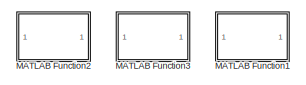
[diagram: root canvas - part 1/2, top right region]
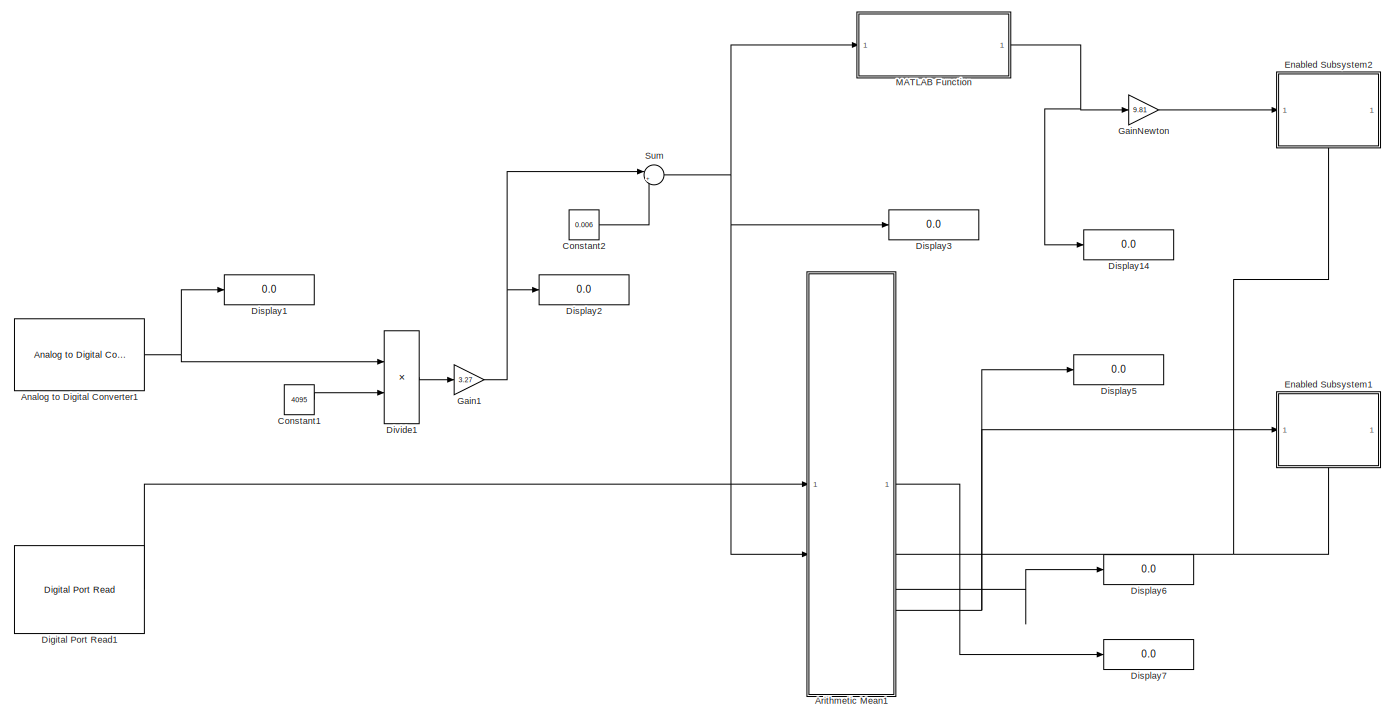
[diagram: root canvas - part 2/2, full width, bottom band]
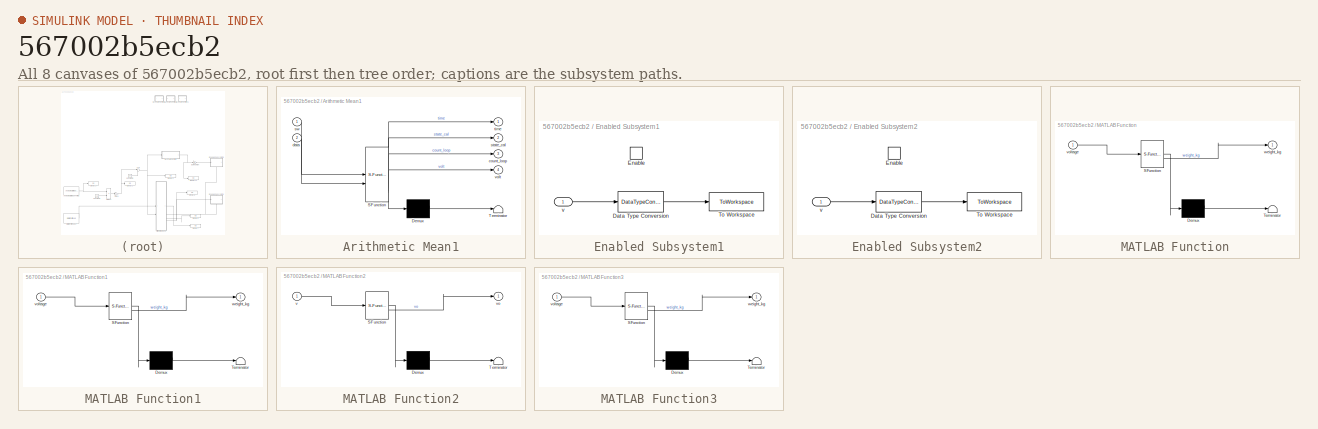
[diagram: thumbnail index - all 8 canvases of the model, root first then tree order]
MODEL slx_567002b5ecb2
KIND model
CONFIG AbsTol = auto
CONFIG EnableMultiTasking = on
CONFIG FixedStep = auto
CONFIG MaxStep = auto
CONFIG MinStep = auto
CONFIG RelTol = 1e-3
CONFIG SampleTimeConstraint = Unconstrained
CONFIG SolverName = FixedStepAuto
CONFIG StartTime = 0.0
CONFIG StopTime = inf
BLOCK [Reference] Analog to Digital Converter1  REF=stm32f4xxblockslib/Analog to Digital Converter
  LibrarySourceBlock = stm32g4xxblockslib/Analog to Digital Converter
  SourceBlock = stm32f4xxblockslib/Analog to Digital Converter
  SourceType = stm32cube.blocks.AnalogInput
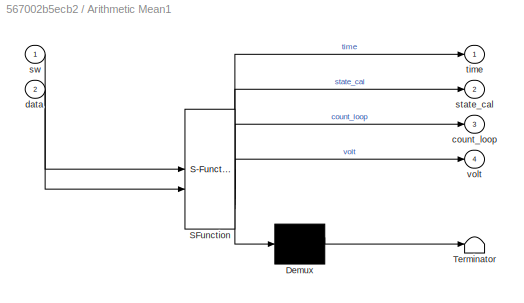
BLOCK [SubSystem] Arithmetic Mean1
  ErrorFcn = Stateflow.Translate.translate
  PermitHierarchicalResolution = ExplicitOnly
  PortSchema = {"entries":[{"content":{"sides":[{"content":{"connectorIds":["In2","In1"]},"type":"ConnectorPlacement.EquallySpacedRectSide","uuid":"35d75dd1-7445-4d4a-b8fe-26ed95a9a6b8"},{"content":{"connectorIds":["Out2","Out4","Out3","Out1"],"side":"RIGHT"},"type":"ConnectorPlacement.EquallySpacedRectSide","uuid":"b4f8c003-30bf-4716-9840-06738554497d"},{"content":{"side":"TOP"},"type":"ConnectorPlacement.Equal...<+249ch>
  SFBlockType = Chart
  TreatAsAtomicUnit = on
BLOCK [Demux] Arithmetic Mean1/ Demux 
  Outputs = 1
BLOCK [S-Function] Arithmetic Mean1/ SFunction 
  EnableBusSupport = on
  FunctionName = sf_sfun
  PortCounts = [2 5]
  SFcnIsStateOwnerBlock = off
  SFunctionDeploymentMode = off
  Tag = Stateflow S-Function 1
BLOCK [Terminator] Arithmetic Mean1/ Terminator 
BLOCK [Outport] Arithmetic Mean1/count_loop
  Port = 3
BLOCK [Inport] Arithmetic Mean1/data
  Port = 2
BLOCK [Outport] Arithmetic Mean1/state_cal
  Port = 2
BLOCK [Inport] Arithmetic Mean1/sw
BLOCK [Outport] Arithmetic Mean1/time
BLOCK [Outport] Arithmetic Mean1/volt
  Port = 4
BLOCK [Constant] Constant1
  Value = 4095
BLOCK [Constant] Constant2
  Value = 0.006
BLOCK [Reference] Digital Port Read1  REF=stm32f4xxblockslib/Digital Port Read
  LibrarySourceBlock = stm32g4xxblockslib/Digital Port Read
  SourceBlock = stm32f4xxblockslib/Digital Port Read
  SourceType = stm32cube.blocks.DigitalPortRead
BLOCK [Display] Display1
  Decimation = 1
BLOCK [Display] Display14
  Decimation = 1
BLOCK [Display] Display2
  Decimation = 1
BLOCK [Display] Display3
  Decimation = 1
BLOCK [Display] Display5
  Decimation = 1
BLOCK [Display] Display6
  Decimation = 1
BLOCK [Display] Display7
  Decimation = 1
BLOCK [Product] Divide1
  Inputs = */
BLOCK [SubSystem] Enabled Subsystem1
  TreatAsAtomicUnit = on
BLOCK [DataTypeConversion] Enabled Subsystem1/Data Type Conversion
  OutDataTypeStr = double
  RndMeth = Floor
  SaturateOnIntegerOverflow = off
BLOCK [EnablePort] Enabled Subsystem1/Enable
BLOCK [ToWorkspace] Enabled Subsystem1/To Workspace
  FixptAsFi = on
  MaxDataPoints = inf
  SampleTime = -1
  Save2DSignal = 2-D array (concatenate along first dimension)
  VariableName = simout
BLOCK [Inport] Enabled Subsystem1/v
BLOCK [SubSystem] Enabled Subsystem2
  TreatAsAtomicUnit = on
BLOCK [DataTypeConversion] Enabled Subsystem2/Data Type Conversion
  OutDataTypeStr = double
  RndMeth = Floor
  SaturateOnIntegerOverflow = off
BLOCK [EnablePort] Enabled Subsystem2/Enable
BLOCK [ToWorkspace] Enabled Subsystem2/To Workspace
  FixptAsFi = on
  MaxDataPoints = inf
  SampleTime = -1
  Save2DSignal = 2-D array (concatenate along first dimension)
  VariableName = simoutNEWTON
BLOCK [Inport] Enabled Subsystem2/v
BLOCK [Gain] Gain1
  Gain = 3.27
BLOCK [Gain] GainNewton
  Gain = 9.81
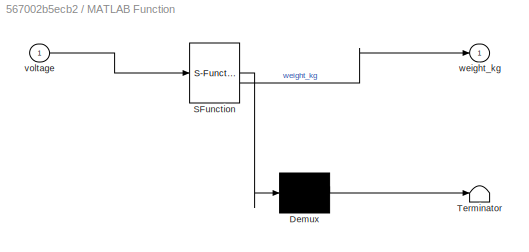
BLOCK [SubSystem] MATLAB Function
  ErrorFcn = Stateflow.Translate.translate
  PermitHierarchicalResolution = ExplicitOnly
  SFBlockType = MATLAB Function
  TreatAsAtomicUnit = on
BLOCK [Demux] MATLAB Function/ Demux 
  Outputs = 1
BLOCK [S-Function] MATLAB Function/ SFunction 
  EnableBusSupport = on
  FunctionName = sf_sfun
  PortCounts = [1 2]
  SFcnIsStateOwnerBlock = off
  SFunctionDeploymentMode = off
  Tag = Stateflow S-Function 2
BLOCK [Terminator] MATLAB Function/ Terminator 
BLOCK [Inport] MATLAB Function/voltage
BLOCK [Outport] MATLAB Function/weight_kg
BLOCK [SubSystem] MATLAB Function1
  Commented = on
  ErrorFcn = Stateflow.Translate.translate
  PermitHierarchicalResolution = ExplicitOnly
  SFBlockType = MATLAB Function
  TreatAsAtomicUnit = on
BLOCK [Demux] MATLAB Function1/ Demux 
  Outputs = 1
BLOCK [S-Function] MATLAB Function1/ SFunction 
  EnableBusSupport = on
  FunctionName = sf_sfun
  PortCounts = [1 2]
  SFcnIsStateOwnerBlock = off
  SFunctionDeploymentMode = off
  Tag = Stateflow S-Function 5
BLOCK [Terminator] MATLAB Function1/ Terminator 
BLOCK [Inport] MATLAB Function1/voltage
BLOCK [Outport] MATLAB Function1/weight_kg
BLOCK [SubSystem] MATLAB Function2
  Commented = on
  ErrorFcn = Stateflow.Translate.translate
  PermitHierarchicalResolution = ExplicitOnly
  SFBlockType = MATLAB Function
  TreatAsAtomicUnit = on
BLOCK [Demux] MATLAB Function2/ Demux 
  Outputs = 1
BLOCK [S-Function] MATLAB Function2/ SFunction 
  EnableBusSupport = on
  FunctionName = sf_sfun
  PortCounts = [1 2]
  SFcnIsStateOwnerBlock = off
  SFunctionDeploymentMode = off
  Tag = Stateflow S-Function 6
BLOCK [Terminator] MATLAB Function2/ Terminator 
BLOCK [Inport] MATLAB Function2/v
BLOCK [Outport] MATLAB Function2/vo
BLOCK [SubSystem] MATLAB Function3
  Commented = on
  ErrorFcn = Stateflow.Translate.translate
  PermitHierarchicalResolution = ExplicitOnly
  SFBlockType = MATLAB Function
  TreatAsAtomicUnit = on
BLOCK [Demux] MATLAB Function3/ Demux 
  Outputs = 1
BLOCK [S-Function] MATLAB Function3/ SFunction 
  EnableBusSupport = on
  FunctionName = sf_sfun
  PortCounts = [1 2]
  SFcnIsStateOwnerBlock = off
  SFunctionDeploymentMode = off
  Tag = Stateflow S-Function 7
BLOCK [Terminator] MATLAB Function3/ Terminator 
BLOCK [Inport] MATLAB Function3/voltage
BLOCK [Outport] MATLAB Function3/weight_kg
BLOCK [Sum] Sum
  Inputs = |+-
NET Analog to Digital Converter1:1 -> Display1:1, Divide1:1
LINE Arithmetic Mean1:1 -> Display7:1
NET Arithmetic Mean1:2 -> Enabled Subsystem1:enable, Enabled Subsystem2:enable
LINE Arithmetic Mean1:3 -> Display6:1
NET Arithmetic Mean1:4 -> Display5:1, Enabled Subsystem1:1
LINE Constant1:1 -> Divide1:2
LINE Constant2:1 -> Sum:2
LINE Digital Port Read1:1 -> Arithmetic Mean1:1
LINE Divide1:1 -> Gain1:1
LINE Enabled Subsystem1/Data Type Conversion:1 -> Enabled Subsystem1/To Workspace:1
LINE Enabled Subsystem1/v:1 -> Enabled Subsystem1/Data Type Conversion:1
LINE Enabled Subsystem2/Data Type Conversion:1 -> Enabled Subsystem2/To Workspace:1
LINE Enabled Subsystem2/v:1 -> Enabled Subsystem2/Data Type Conversion:1
NET Gain1:1 -> Display2:1, Sum:1
LINE GainNewton:1 -> Enabled Subsystem2:1
NET MATLAB Function:1 -> Display14:1, GainNewton:1
NET Sum:1 -> Arithmetic Mean1:2, Display3:1, MATLAB Function:1
note: NET lines group one-source signal fan-out (src -> all destinations, sorted); 1:1 wires keep LINE
CHART Arithmetic Mean1 states=3 transitions=4
  STATE_LABEL 'Initial\nvolt ;\ntime = 0;\nstate_cal = 0;\ncount_loop=0;\n'
  STATE_LABEL 'StopCount\nentry:\nstate_cal = 1\n'
  STATE_LABEL 'CountData\nentry:\nvolt = data - data;\nduring:\nvolt = volt + data\ncount_loop=count_loop+1\ntime=time+1\nexit:\nvolt =volt/1;\n'
CHART MATLAB Function states=1 transitions=1
  STATE_LABEL 'eML_blk_kernel()'
  STATE_LABEL 'SCRIPT:\nfunction weight_kg = calculateWeight(voltage)\n    % ตรวจสอบว่า voltage อยู่ในช่วง 0 ถึง 0.142 โวลต์หรือไม่\n    if voltage <= 0.142 && voltage >= 0\n        % ค่าคงที่จากสมการกำลังสอง\n        a = 0.1413;\n        b = 0.0027;\n        c = - (voltage + 0.0004);  % ปรับค่า c โดยรวมค่า voltage เข้าไป\n\n        % คำนวณค่า discriminant (b^2 - 4ac) เพื่อหาว่ามีรากจริงหรือไม่\n        discriminant = b^2...<+879ch>'
CHART MATLAB Function1 states=1 transitions=1
  STATE_LABEL 'eML_blk_kernel()'
  STATE_LABEL 'SCRIPT:\nfunction weight_kg = calculateWeight(voltage)\n    % ตรวจสอบว่า voltage อยู่ในช่วง 0 ถึง 0.142 โวลต์หรือไม่\n    if voltage <= 0.142 && voltage >= 0\n        % ค่าคงที่จากสมการกำลังสอง\n        a = 0.1413;\n        b = 0.0027;\n        c = - (voltage + 0.0004);  % ปรับค่า c โดยรวมค่า voltage เข้าไป\n\n        % คำนวณค่า discriminant (b^2 - 4ac) เพื่อหาว่ามีรากจริงหรือไม่\n        discriminant = b^2...<+879ch>'
CHART MATLAB Function2 states=1 transitions=1
  STATE_LABEL 'eML_blk_kernel()'
  STATE_LABEL 'SCRIPT:\nfunction vo = fcn(v)\n        if v >= 0.006\n            vo = v-0.006;  \n        else \n            vo = 0 ;\n        end'
CHART MATLAB Function3 states=1 transitions=1
  STATE_LABEL 'eML_blk_kernel()'
  STATE_LABEL 'SCRIPT:\nfunction weight_kg = calculateWeight(voltage)\n    % คำนวณน้ำหนักเป็นกิโลกรัม (weight_kg) จากค่าแรงดันไฟฟ้า (voltage)\n    \n    % กรณีที่ voltage อยู่ในช่วง 0 ถึง 0.142 โวลต์\n    if voltage <= 0.142 && voltage >= 0\n        % ใช้สมการที่กำหนดสำหรับช่วงแรงดันไฟฟ้านี้\n        weight_kg = 2.4949e+03 * (sin(voltage - pi)) - 125.5428 * ((voltage - 10)^2) + 1.2554e+04;\n    \n    % กรณีที่ voltage น้...<+267ch>'
CHART  states=0 transitions=0
CHART  states=0 transitions=0
CHART  states=0 transitions=0
CHART  states=0 transitions=0
CHART  states=0 transitions=0
